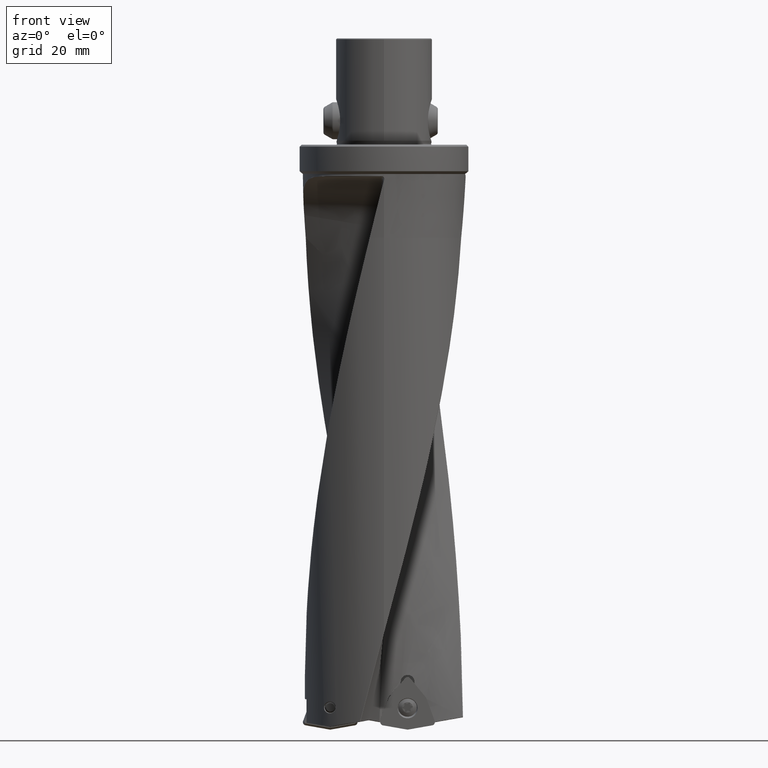
[diagram: clean part render]
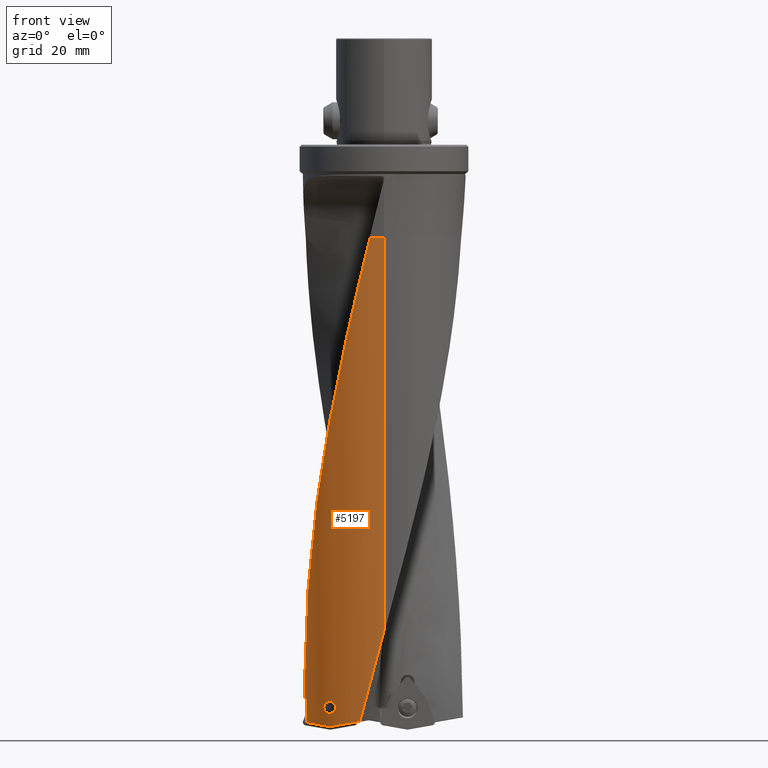
[diagram: same view with one face highlighted and labeled with its STEP entity id]
A machine part, front view. The second image highlights one B-rep face of the part: STEP entity #5197.
In plain terms, the highlighted cylindrical surface (partial cylindrical patch) has radius 29.7375 mm, axis along (-0, -0, 1).
Its self-contained STEP definition (entity closure, byte-faithful):
#1913=EDGE_CURVE('NONE',#3829,#2635,#5457,.T.);
#2325=EDGE_CURVE('NONE',#4553,#4881,#5917,.F.);
#2635=VERTEX_POINT('NONE',#6261);
#2789=EDGE_CURVE('NONE',#2635,#4781,#6432,.T.);
#2795=VERTEX_POINT('',#6438);
#2895=EDGE_CURVE('NONE',#4881,#4553,#6546,.F.);
#3433=VERTEX_POINT('NONE',#7142);
#3581=EDGE_CURVE('',#5069,#2795,#7304,.T.);
#3829=VERTEX_POINT('NONE',#7581);
#3929=VERTEX_POINT('NONE',#7693);
#4171=VERTEX_POINT('NONE',#7961);
#4247=EDGE_CURVE('NONE',#4171,#4867,#8050,.F.);
#4271=EDGE_CURVE('NONE',#3929,#3433,#8075,.F.);
#4553=VERTEX_POINT('NONE',#8393);
#4611=EDGE_CURVE('NONE',#3433,#2795,#8457,.F.);
#4761=EDGE_CURVE('NONE',#5069,#4171,#8620,.T.);
#4781=VERTEX_POINT('NONE',#8640);
#4867=VERTEX_POINT('NONE',#8733);
#4881=VERTEX_POINT('NONE',#8747);
#4891=EDGE_CURVE('NONE',#4781,#3929,#8757,.F.);
#4935=EDGE_CURVE('NONE',#4867,#3829,#8803,.T.);
#5069=VERTEX_POINT('',#8953);
#5197=ADVANCED_FACE('NONE',(#9096,#9097),#9098,.T.);
#5457=(B_SPLINE_CURVE(3,(#10020,#10021,#10022,#10023),.UNSPECIFIED.,.F.,.F.)B_SPLINE_CURVE_WITH_KNOTS((4,4),(0.0155828880857052,0.196263963772872),.UNSPECIFIED.)RATIONAL_B_SPLINE_CURVE((0.999693972573987,0.997077504333847,0.997179513475851,1.0))BOUNDED_CURVE()REPRESENTATION_ITEM('')GEOMETRIC_REPRESENTATION_ITEM()CURVE());
#5917=B_SPLINE_CURVE_WITH_KNOTS('',3,(#15445,#15446,#15447,#15448,#15449,#15450,#15451,#15452,#15453,#15454,#15455,#15456,#15457,#15458,#15459,#15460,#15461,#15462,#15463,#15464,#15465,#15466,#15467,#15468,#15469,#15470,#15471,#15472,#15473,#15474,#15475,#15476,#15477,#15478),.UNSPECIFIED.,.F.,.F.,(4,3,3,3,3,3,3,3,3,3,3,4),(0.0,0.054622790585376,0.0814512438246202,0.162872409343584,0.298427410037743,0.352164118722466,0.478384512422096,0.563842334581323,0.640261274879574,0.775106331404372,0.86105165628033,1.0),.UNSPECIFIED.);
#6261=CARTESIAN_POINT('',(-29.1665988851202,-5.79900126957258,-208.336997351257));
#6432=LINE('',#25428,#25429);
#6438=CARTESIAN_POINT('',(-2.07640241021142E-013,-29.7375,-182.909381658878));
#6546=B_SPLINE_CURVE_WITH_KNOTS('',3,(#25676,#25677,#25678,#25679,#25680,#25681,#25682,#25683,#25684,#25685,#25686,#25687,#25688,#25689,#25690,#25691,#25692,#25693,#25694,#25695,#25696,#25697,#25698,#25699,#25700,#25701,#25702,#25703,#25704,#25705,#25706,#25707,#25708,#25709,#25710,#25711,#25712),.UNSPECIFIED.,.F.,.F.,(4,3,3,3,3,3,3,3,3,3,3,3,4),(0.0,0.054147115942548,0.0872032176109815,0.173791027188794,0.316917090238218,0.373466256350033,0.480062868958637,0.559968418863172,0.622621892151899,0.723392950413797,0.773695961767576,0.849239591397726,1.0),.UNSPECIFIED.);
#7142=CARTESIAN_POINT('',(-9.06178153243483,-28.3231887630687,-216.839165333545));
#7304=LINE('',#34133,#34134);
#7581=CARTESIAN_POINT('',(-29.7338936407392,-0.463114684722812,-208.336997351257));
#7693=CARTESIAN_POINT('',(-20.3594806662556,-21.6751099814791,-218.818499559755));
#7961=CARTESIAN_POINT('',(-5.25460671906905,-29.2695748940417,-35.004216874551));
#8050=B_SPLINE_CURVE_WITH_KNOTS('',3,(#39351,#39352,#39353,#39354,#39355,#39356,#39357,#39358,#39359,#39360,#39361,#39362,#39363,#39364,#39365,#39366,#39367,#39368,#39369,#39370,#39371,#39372,#39373,#39374,#39375,#39376,#39377,#39378,#39379,#39380,#39381,#39382,#39383,#39384,#39385,#39386,#39387,#39388,#39389,#39390),.UNSPECIFIED.,.F.,.F.,(4,3,3,3,3,3,3,3,3,3,3,3,3,4),(0.0,0.116025343493054,0.209528557307219,0.300182445096312,0.381650165946958,0.460447432400225,0.542822163760826,0.635365425475955,0.724811177052913,0.789285626570164,0.879182535567323,0.934601147258336,0.978461138708639,1.0),.UNSPECIFIED.);
#8075=(B_SPLINE_CURVE(3,(#39421,#39422,#39423,#39424),.UNSPECIFIED.,.F.,.F.)B_SPLINE_CURVE_WITH_KNOTS((4,4),(-4.40273852515798,-3.95827759394185),.UNSPECIFIED.)RATIONAL_B_SPLINE_CURVE((1.0,0.983605512355112,0.983605512355112,1.0))BOUNDED_CURVE()REPRESENTATION_ITEM('')GEOMETRIC_REPRESENTATION_ITEM()CURVE());
#8393=CARTESIAN_POINT('',(-20.2233226981886,-21.8022045971257,-209.391070521725));
#8457=B_SPLINE_CURVE_WITH_KNOTS('',3,(#47955,#47956,#47957,#47958,#47959,#47960,#47961,#47962,#47963,#47964,#47965,#47966,#47967,#47968,#47969,#47970,#47971,#47972,#47973,#47974,#47975,#47976,#47977,#47978,#47979,#47980,#47981,#47982),.UNSPECIFIED.,.F.,.F.,(4,3,3,3,3,3,3,3,3,4),(0.0,0.0138801741994209,0.0277587662375939,0.105136877169776,0.2980105920843,0.48115427402022,0.667697862652595,0.844387294639321,0.983483297206192,1.0),.UNSPECIFIED.);
#8620=CIRCLE('',#48314,29.7375);
#8640=CARTESIAN_POINT('',(-29.1665988851202,-5.79900126957258,-217.275381840515));
#8733=CARTESIAN_POINT('',(-29.7338936407392,-0.463114684722807,-199.024522344378));
#8747=CARTESIAN_POINT('',(-20.660467990783,-21.388407342573,-213.86705468703));
#8757=(B_SPLINE_CURVE(3,(#48635,#48636,#48637,#48638),.UNSPECIFIED.,.F.,.F.)B_SPLINE_CURVE_WITH_KNOTS((4,4),(-0.816684940352055,-0.196263922274162),.UNSPECIFIED.)RATIONAL_B_SPLINE_CURVE((1.0,0.968179554123284,0.968179554123284,1.0))BOUNDED_CURVE()REPRESENTATION_ITEM('')GEOMETRIC_REPRESENTATION_ITEM()CURVE());
#8803=LINE('',#48775,#48776);
#8953=CARTESIAN_POINT('',(3.6731369063572E-015,-29.7375,-35.004216874551));
#9096=FACE_BOUND('',#52280,.T.);
#9097=FACE_OUTER_BOUND('',#52281,.T.);
#9098=CYLINDRICAL_SURFACE('',#52282,29.7375);
#10020=CARTESIAN_POINT('',(-29.7338936407392,-0.463114684722828,-208.336997351257));
#10021=CARTESIAN_POINT('',(-29.7059608223102,-2.25651808922294,-208.336997351257));
#10022=CARTESIAN_POINT('',(-29.5163305702696,-4.03999427785313,-208.336997351257));
#10023=CARTESIAN_POINT('',(-29.1665988851202,-5.79900126957258,-208.336997351257));
#15445=CARTESIAN_POINT('',(-20.660467990783,-21.388407342573,-213.86705468703));
#15446=CARTESIAN_POINT('',(-20.5498282232916,-21.4952815636476,-213.881785512245));
#15447=CARTESIAN_POINT('',(-20.4378292792082,-21.6018061973711,-213.890572544244));
#15448=CARTESIAN_POINT('',(-20.3247645036382,-21.7076680949762,-213.887731801336));
#15449=CARTESIAN_POINT('',(-20.2692317669933,-21.7596630761788,-213.886336546033));
#15450=CARTESIAN_POINT('',(-20.2135381686638,-21.8114083324933,-213.883201412413));
#15451=CARTESIAN_POINT('',(-20.1577772684914,-21.8628205372475,-213.878255996032));
#15452=CARTESIAN_POINT('',(-19.9885495667697,-22.0188504654607,-213.863247245354));
#15453=CARTESIAN_POINT('',(-19.8184518188332,-22.1720111602291,-213.828988816955));
#15454=CARTESIAN_POINT('',(-19.6502753646256,-22.3200713337657,-213.773843585781));
#15455=CARTESIAN_POINT('',(-19.3702847845159,-22.5665710835372,-213.682034388475));
#15456=CARTESIAN_POINT('',(-19.0949297592529,-22.7991830643999,-213.531965767775));
#15457=CARTESIAN_POINT('',(-18.8501245795243,-22.9998197729116,-213.31469642751));
#15458=CARTESIAN_POINT('',(-18.7530789186469,-23.0793561699574,-213.22856652316));
#15459=CARTESIAN_POINT('',(-18.6609861164097,-23.1537948397926,-213.131963003382));
#15460=CARTESIAN_POINT('',(-18.5764775444579,-23.221399361155,-213.024824446872));
#15461=CARTESIAN_POINT('',(-18.3779781297408,-23.3801934055075,-212.77317020317));
#15462=CARTESIAN_POINT('',(-18.2218620468759,-23.5008884693958,-212.460563680003));
#15463=CARTESIAN_POINT('',(-18.1462499200038,-23.5591281691569,-212.115992338909));
#15464=CARTESIAN_POINT('',(-18.0950565470319,-23.5985594984288,-211.882699480874));
#15465=CARTESIAN_POINT('',(-18.0813403738835,-23.6090047707899,-211.636151325899));
#15466=CARTESIAN_POINT('',(-18.1072848259002,-23.5890894797515,-211.396291186376));
#15467=CARTESIAN_POINT('',(-18.1304851307949,-23.5712806309133,-211.181801076296));
#15468=CARTESIAN_POINT('',(-18.1850681018769,-23.5293928173919,-210.973128713376));
#15469=CARTESIAN_POINT('',(-18.2644637796792,-23.4676004118611,-210.781451047036));
#15470=CARTESIAN_POINT('',(-18.4045614389676,-23.358564610212,-210.443226182216));
#15471=CARTESIAN_POINT('',(-18.6197757535618,-23.1888572204273,-210.160001105979));
#15472=CARTESIAN_POINT('',(-18.8645252979886,-22.9880097340232,-209.946594229998));
#15473=CARTESIAN_POINT('',(-19.0205197382085,-22.8599968656661,-209.810576464426));
#15474=CARTESIAN_POINT('',(-19.1889740192562,-22.7190302663645,-209.70120906085));
#15475=CARTESIAN_POINT('',(-19.3623053119802,-22.5703353819934,-209.616740980578));
#15476=CARTESIAN_POINT('',(-19.6425310959138,-22.3299394333741,-209.48018090744));
#15477=CARTESIAN_POINT('',(-19.9353989221511,-22.0692773791166,-209.408296560789));
#15478=CARTESIAN_POINT('',(-20.2233226981886,-21.8022045971257,-209.391070521725));
#25428=CARTESIAN_POINT('',(-29.1665988851202,-5.79900126957258,19.1374973745012));
#25429=VECTOR('',#53813,1.0);
#25676=CARTESIAN_POINT('',(-20.2233226981886,-21.8022045971257,-209.391070521725));
#25677=CARTESIAN_POINT('',(-20.3356188116627,-21.6980407943129,-209.384352017039));
#25678=CARTESIAN_POINT('',(-20.4473792678186,-21.5927557786829,-209.383334029869));
#25679=CARTESIAN_POINT('',(-20.5581784927154,-21.4867448281878,-209.394390029243));
#25680=CARTESIAN_POINT('',(-20.6258199613184,-21.4220265380899,-209.401139571356));
#25681=CARTESIAN_POINT('',(-20.6930207645001,-21.3571169888156,-209.410626233186));
#25682=CARTESIAN_POINT('',(-20.7596060835316,-21.29219719772,-209.422459989569));
#25683=CARTESIAN_POINT('',(-20.9340209913394,-21.122145006884,-209.453457566192));
#25684=CARTESIAN_POINT('',(-21.1043769413629,-20.951834241006,-209.504396912016));
#25685=CARTESIAN_POINT('',(-21.2685506949173,-20.7838316387458,-209.575807459741));
#25686=CARTESIAN_POINT('',(-21.5399231100051,-20.5061302953257,-209.69384613754));
#25687=CARTESIAN_POINT('',(-21.7950730199591,-20.2336953655325,-209.866866814166));
#25688=CARTESIAN_POINT('',(-22.0167258360849,-19.9895645202358,-210.103056748131));
#25689=CARTESIAN_POINT('',(-22.1043009544889,-19.8931083233031,-210.196375487745));
#25690=CARTESIAN_POINT('',(-22.1864753842159,-19.8013096398055,-210.299783427633));
#25691=CARTESIAN_POINT('',(-22.2610405336549,-19.7171240450775,-210.414220960795));
#25692=CARTESIAN_POINT('',(-22.4015977318483,-19.5584320634717,-210.629938613752));
#25693=CARTESIAN_POINT('',(-22.5155037942102,-19.4262638470794,-210.886720314834));
#25694=CARTESIAN_POINT('',(-22.5763243876002,-19.3553218365349,-211.174185425083));
#25695=CARTESIAN_POINT('',(-22.6219159204025,-19.3021432202059,-211.389671237912));
#25696=CARTESIAN_POINT('',(-22.6360038731933,-19.285519922521,-211.621078683462));
#25697=CARTESIAN_POINT('',(-22.61502490405,-19.3100894570481,-211.84529922869));
#25698=CARTESIAN_POINT('',(-22.5985754173195,-19.3293542850488,-212.021109243864));
#25699=CARTESIAN_POINT('',(-22.561207301997,-19.3731109439954,-212.191687560001));
#25700=CARTESIAN_POINT('',(-22.5081284254219,-19.4345841487466,-212.349644899247));
#25701=CARTESIAN_POINT('',(-22.4227570280665,-19.5334568779405,-212.603701496599));
#25702=CARTESIAN_POINT('',(-22.297851386755,-19.6766778885425,-212.824815792825));
#25703=CARTESIAN_POINT('',(-22.1533449642485,-19.8380496305711,-213.010937058376));
#25704=CARTESIAN_POINT('',(-22.0812100840814,-19.9186033600988,-213.103845283175));
#25705=CARTESIAN_POINT('',(-22.0039656744834,-20.0039700376988,-213.188452798767));
#25706=CARTESIAN_POINT('',(-21.9228400644563,-20.0924859029008,-213.265317146922));
#25707=CARTESIAN_POINT('',(-21.8010079340834,-20.2254165079929,-213.380749835594));
#25708=CARTESIAN_POINT('',(-21.6704135011075,-20.3654413920748,-213.478719221794));
#25709=CARTESIAN_POINT('',(-21.534011082195,-20.5086633636105,-213.560923715352));
#25710=CARTESIAN_POINT('',(-21.261796409558,-20.7944876356937,-213.724977032601));
#25711=CARTESIAN_POINT('',(-20.9660937229844,-21.0931833665111,-213.826362988255));
#25712=CARTESIAN_POINT('',(-20.660467990783,-21.388407342573,-213.86705468703));
#34133=CARTESIAN_POINT('',(3.6731369063572E-015,-29.7375,-126.911254649603));
#34134=VECTOR('',#54816,1.0);
#39351=CARTESIAN_POINT('',(-29.7338936407392,-0.463114684722805,-199.024522344378));
#39352=CARTESIAN_POINT('',(-29.7091558841603,-2.05138179715004,-192.682047290003));
#39353=CARTESIAN_POINT('',(-29.5578513958811,-3.62786863087019,-186.337112018193));
#39354=CARTESIAN_POINT('',(-29.2815259019833,-5.18759550287785,-179.993519339136));
#39355=CARTESIAN_POINT('',(-29.0588390220279,-6.44455773901001,-174.881306052258));
#39356=CARTESIAN_POINT('',(-28.7535563202704,-7.69268955001865,-169.770532142917));
#39357=CARTESIAN_POINT('',(-28.3715838535976,-8.90910410132693,-164.657925607581));
#39358=CARTESIAN_POINT('',(-28.0012512444842,-10.0884508183123,-159.70111567284));
#39359=CARTESIAN_POINT('',(-27.5577618681364,-11.2440334302177,-154.744116126071));
#39360=CARTESIAN_POINT('',(-27.0415180736693,-12.372356546811,-149.78848436999));
#39361=CARTESIAN_POINT('',(-26.57758645017,-13.3863440870454,-145.335018176877));
#39362=CARTESIAN_POINT('',(-26.0577107834426,-14.371754343417,-140.88089090149));
#39363=CARTESIAN_POINT('',(-25.4856036257409,-15.3232801345412,-136.426210393744));
#39364=CARTESIAN_POINT('',(-24.9322497369302,-16.2436155817279,-132.117551169357));
#39365=CARTESIAN_POINT('',(-24.3279402882861,-17.1357258851304,-127.809426403148));
#39366=CARTESIAN_POINT('',(-23.6754170753865,-17.9942638792616,-123.501897269846));
#39367=CARTESIAN_POINT('',(-22.9932687371438,-18.8917802502308,-118.998802541374));
#39368=CARTESIAN_POINT('',(-22.2623109801054,-19.747635379817,-114.49481590122));
#39369=CARTESIAN_POINT('',(-21.4860659989448,-20.5588879596876,-109.990585382409));
#39370=CARTESIAN_POINT('',(-20.6139995137488,-21.4702834638184,-104.930342066981));
#39371=CARTESIAN_POINT('',(-19.6787599767516,-22.3307787122843,-99.8718416663172));
#39372=CARTESIAN_POINT('',(-18.6955941589749,-23.125606268656,-94.8123218188159));
#39373=CARTESIAN_POINT('',(-17.7453358271851,-23.8938301980501,-89.9221488662854));
#39374=CARTESIAN_POINT('',(-16.7509657965854,-24.6010788639279,-85.031001350283));
#39375=CARTESIAN_POINT('',(-15.7150159506457,-25.2459339284755,-80.1403704307045));
#39376=CARTESIAN_POINT('',(-14.9682806964065,-25.7107595302744,-76.6150969462442));
#39377=CARTESIAN_POINT('',(-14.1969187295742,-26.1446584134262,-73.0910146201691));
#39378=CARTESIAN_POINT('',(-13.4102825030998,-26.542102958075,-69.5662088902384));
#39379=CARTESIAN_POINT('',(-12.3134733671596,-27.0962610211408,-64.651562199824));
#39380=CARTESIAN_POINT('',(-11.1881650677472,-27.5799066322862,-59.7353186473621));
#39381=CARTESIAN_POINT('',(-10.0323889353793,-27.9941079246916,-54.8203804765695));
#39382=CARTESIAN_POINT('',(-9.31988936897634,-28.2494499697274,-51.7904759669372));
#39383=CARTESIAN_POINT('',(-8.59455233164701,-28.4785237053815,-48.7613967196649));
#39384=CARTESIAN_POINT('',(-7.86406440588679,-28.6788318672512,-45.7316445603818));
#39385=CARTESIAN_POINT('',(-7.28593382482809,-28.8373618989311,-43.3338056440338));
#39386=CARTESIAN_POINT('',(-6.70461344385491,-28.9780057234451,-40.9355392051023));
#39387=CARTESIAN_POINT('',(-6.11929110894489,-29.1010855909876,-38.5373696108079));
#39388=CARTESIAN_POINT('',(-5.83184972636625,-29.1615279236716,-37.3596711996443));
#39389=CARTESIAN_POINT('',(-5.54364414322953,-29.217685585893,-36.1819348376519));
#39390=CARTESIAN_POINT('',(-5.25460671906905,-29.2695748940417,-35.004216874551));
#39421=CARTESIAN_POINT('',(-9.06178153243482,-28.3231887630687,-216.839165333545));
#39422=CARTESIAN_POINT('',(-13.2928779425178,-26.9694827368308,-217.5802041748));
#39423=CARTESIAN_POINT('',(-17.1215597276767,-24.7165085636805,-218.250763679624));
#39424=CARTESIAN_POINT('',(-20.3595190592425,-21.6750753153557,-218.817863409466));
#47955=CARTESIAN_POINT('',(29.0226496763432,-6.48110422800421,-35.004216874551));
#47956=CARTESIAN_POINT('',(28.9727246311949,-6.70467062108196,-35.8453590138589));
#47957=CARTESIAN_POINT('',(28.9206935896616,-6.92564166909692,-36.6870670148202));
#47958=CARTESIAN_POINT('',(28.8658212213104,-7.14725621965151,-37.5284191710098));
#47959=CARTESIAN_POINT('',(28.810955107703,-7.36884550899909,-38.3696754238802));
#47960=CARTESIAN_POINT('',(28.7532108164954,-7.59106844914984,-39.2105759130977));
#47961=CARTESIAN_POINT('',(28.6929906194802,-7.81224651175452,-40.0515737687937));
#47962=CARTESIAN_POINT('',(28.3572414979423,-9.04539326157738,-44.7404373936328));
#47963=CARTESIAN_POINT('',(27.942652169178,-10.2545528940768,-49.4299614346731));
#47964=CARTESIAN_POINT('',(27.4520012520721,-11.4326958109726,-54.119317705414));
#47965=CARTESIAN_POINT('',(26.2289982093722,-14.3693506135315,-65.8080699067724));
#47966=CARTESIAN_POINT('',(24.5326669599655,-17.1043603262795,-77.4977822135652));
#47967=CARTESIAN_POINT('',(22.4492533655695,-19.5025621285631,-89.1877188627222));
#47968=CARTESIAN_POINT('',(20.4709431699986,-21.7797801947482,-100.28792523596));
#47969=CARTESIAN_POINT('',(18.1445632851784,-23.7523357584174,-111.388460854758));
#47970=CARTESIAN_POINT('',(15.5778282447737,-25.330814701196,-122.489554951026));
#47971=CARTESIAN_POINT('',(12.9634439512818,-26.9385967630943,-133.796731418016));
#47972=CARTESIAN_POINT('',(10.0991113858294,-28.1379591922356,-145.10406254381));
#47973=CARTESIAN_POINT('',(7.11950095200584,-28.8726793430119,-156.411330514019));
#47974=CARTESIAN_POINT('',(4.29728830479704,-29.5685879350016,-167.12129256431));
#47975=CARTESIAN_POINT('',(1.37455495074917,-29.8475085134538,-177.831765350085));
#47976=CARTESIAN_POINT('',(-1.52750970131436,-29.6982427150562,-188.541957044845));
#47977=CARTESIAN_POINT('',(-3.81211488541491,-29.580735540781,-196.973388595194));
#47978=CARTESIAN_POINT('',(-6.08402024650175,-29.1983040435064,-205.404540471183));
#47979=CARTESIAN_POINT('',(-8.28200192684598,-28.5609409917411,-213.835728202154));
#47980=CARTESIAN_POINT('',(-8.54299727890886,-28.4852584710109,-214.83687431262));
#47981=CARTESIAN_POINT('',(-8.80296006484087,-28.4059966564476,-215.838020605773));
#47982=CARTESIAN_POINT('',(-9.06178153243484,-28.3231887630687,-216.839165333545));
#48314=AXIS2_PLACEMENT_3D('',#56379,#56380,#56381);
#48635=CARTESIAN_POINT('',(-20.3595190592425,-21.6750753153557,-218.817863409466));
#48636=CARTESIAN_POINT('',(-24.9155018503242,-17.3956152849264,-218.019923613002));
#48637=CARTESIAN_POINT('',(-27.9476803990139,-11.9296615169605,-217.488864553973));
#48638=CARTESIAN_POINT('',(-29.1665988851202,-5.79900126957258,-217.275381840515));
#48775=CARTESIAN_POINT('',(-29.7338936407392,-0.46311468472281,19.1374973745012));
#48776=VECTOR('',#56531,1.0);
#52280=EDGE_LOOP('',(#56885,#56886));
#52281=EDGE_LOOP('',(#56887,#56888,#56889,#56890,#56891,#56892,#56893,#56894,#56895));
#52282=AXIS2_PLACEMENT_3D('',#56896,#56897,#56898);
#53813=DIRECTION('',(0.0,0.0,-1.0));
#54816=DIRECTION('',(0.0,0.0,-1.0));
#56379=CARTESIAN_POINT('',(0.0,0.0,-35.004216874551));
#56380=DIRECTION('',(0.0,0.0,-1.0));
#56381=DIRECTION('',(0.0,1.0,0.0));
#56531=DIRECTION('',(0.0,0.0,-1.0));
#56885=ORIENTED_EDGE('',*,*,#2895,.T.);
#56886=ORIENTED_EDGE('',*,*,#2325,.T.);
#56887=ORIENTED_EDGE('',*,*,#3581,.F.);
#56888=ORIENTED_EDGE('',*,*,#4761,.T.);
#56889=ORIENTED_EDGE('',*,*,#4247,.T.);
#56890=ORIENTED_EDGE('',*,*,#4935,.T.);
#56891=ORIENTED_EDGE('',*,*,#1913,.T.);
#56892=ORIENTED_EDGE('',*,*,#2789,.T.);
#56893=ORIENTED_EDGE('',*,*,#4891,.T.);
#56894=ORIENTED_EDGE('',*,*,#4271,.T.);
#56895=ORIENTED_EDGE('',*,*,#4611,.T.);
#56896=CARTESIAN_POINT('',(0.0,0.0,19.1374973745012));
#56897=DIRECTION('',(-0.0,-0.0,1.0));
#56898=DIRECTION('',(0.0,1.0,0.0));